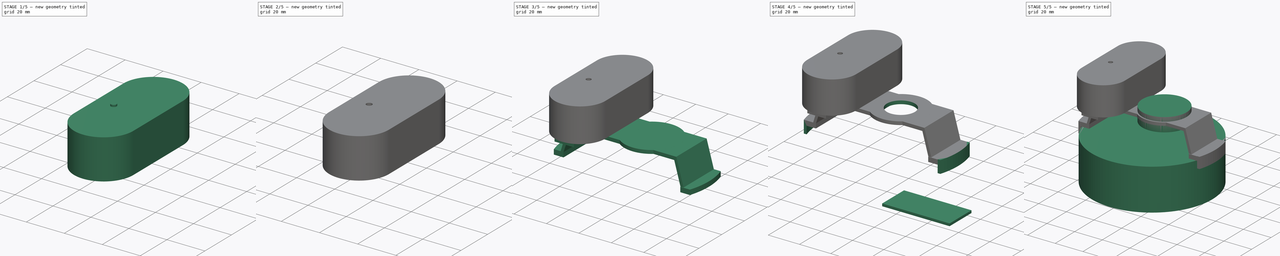
[diagram: build sequence overview — one tinted view per stage of 5, left to right]
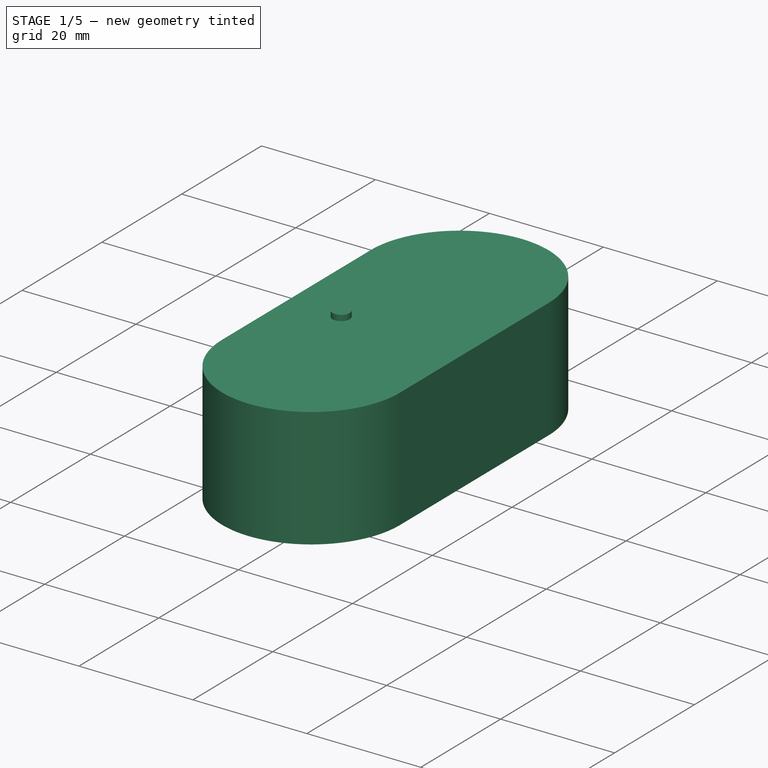
[diagram: stage 1 of 5 — iso view after this stage's code; geometry added in this stage tinted green]
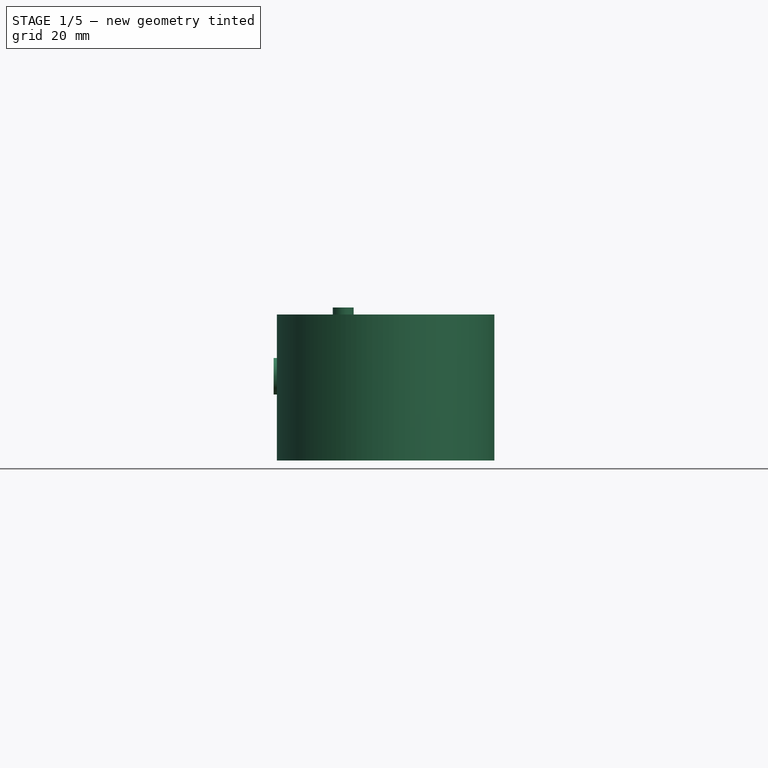
[diagram: stage 1 of 5 — front view after this stage's code; geometry added in this stage tinted green]
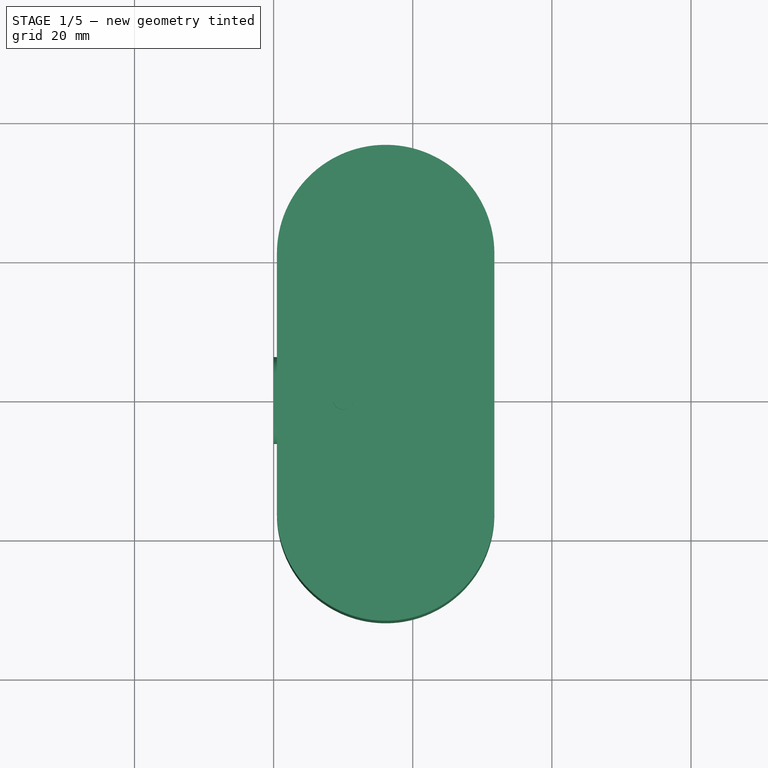
[diagram: stage 1 of 5 — top view after this stage's code; geometry added in this stage tinted green]
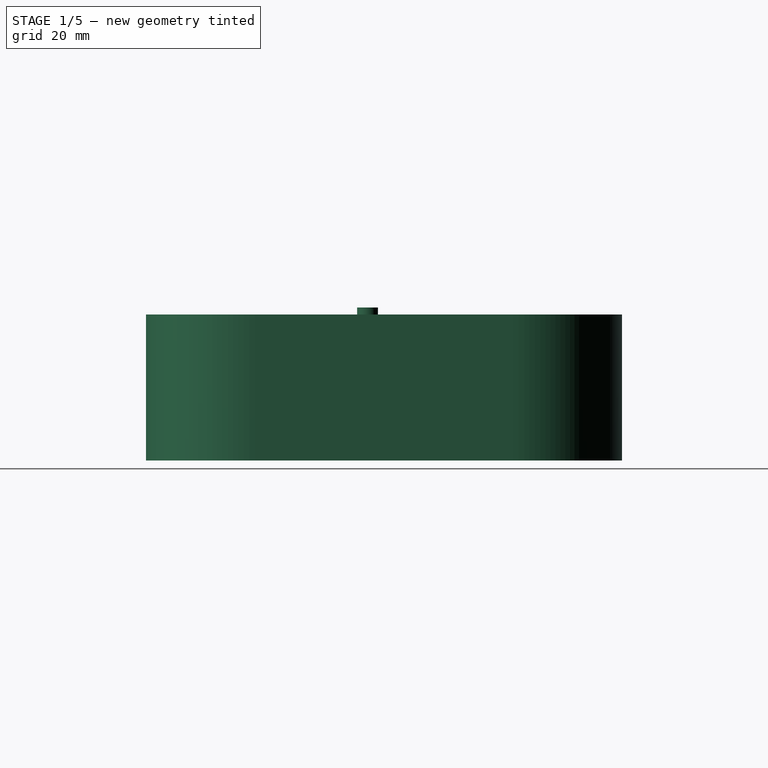
[diagram: stage 1 of 5 — right view after this stage's code; geometry added in this stage tinted green]
FCSTD DOCUMENT  (FreeCAD 1.0R38641 +678 (Git))
Label: watergenie
License: All rights reserved
LicenseURL: https://en.wikipedia.org/wiki/All_rights_reserved
objects: Part::Cylinder×10, Sketcher::SketchObject×7, Part::Cut×7, Part::Extrusion×6, Part::FeaturePython×5, Part::MultiFuse×5, Part::Box×3, App::Part×1, Part::Feature×1, Part::Compound×1
note: 52 computed .brp shape members not serialized (recipe doc carries the construction recipe); baked Part::Feature solids carry a one-line shape summary decoded from their .brp

FEATURE [Sketcher::SketchObject] Sketch005
  ArcFitTolerance = 1e-06
  FullyConstrained = false
  MakeInternals = false
  MapMode = 5
  Placement = pos=(-2,-1,-5) rot=(1,0,0;1.5708rad)
  sketch-geometry (4):
    g0: ArcOfCircle CenterX=16.4089 CenterY=12.1193 CenterZ=0 NormalX=0 NormalY=0 NormalZ=1 AngleXU=0 Radius=2.62202 StartAngle=1.5708 EndAngle=4.71239
    g1: ArcOfCircle CenterX=23.6644 CenterY=12.1193 CenterZ=0 NormalX=0 NormalY=0 NormalZ=1 AngleXU=0 Radius=2.62202 StartAngle=4.71239 EndAngle=7.85398
    g2: LineSegment StartX=16.4089 StartY=14.7414 StartZ=0 EndX=23.6644 EndY=14.7414 EndZ=0
    g3: LineSegment StartX=16.4089 StartY=9.49732 StartZ=0 EndX=23.6644 EndY=9.49732 EndZ=0
  constraints (6):
    c: Tangent(g0,g2) = 1.5708
    c: Tangent(g0,g3) = -1.5708
    c: Tangent(g1,g2) = 1.5708
    c: Tangent(g1,g3) = -1.5708
    c: Equal(g0,g1)
    c: Horizontal(g3)
FEATURE [Part::Extrusion] Extrude005  label="usbExtrude001"
  Base = -> Sketch005
  Dir = (0,-1,2e-16)
  DirMode = 2
  FaceMakerClass = Part::FaceMakerBullseye
  FaceMakerMode = 3
  LengthFwd = 3
  LengthRev = 0
  Placement = pos=(-36,18,54) rot=(0,0,1;4.71239rad)
  Solid = true
  Symmetric = false
FEATURE [Part::Box] Box  label="inner001"
  AttacherType = Attacher::AttachEngine3D
  Height = 19
  Length = 28
  Placement = pos=(-38,-21,49) rot=(0,0,1;0rad)
  Width = 46
FEATURE [Sketcher::SketchObject] Sketch006  label="outer001"
  ArcFitTolerance = 1e-06
  AttachmentOffset = pos=(0,0,2) rot=(0,0,1;0rad)
  AttachmentSupport = -> [Box]
  FullyConstrained = false
  MakeInternals = false
  MapMode = 5
  Placement = pos=(-38,-21,70) rot=(0,0,1;0rad)
  sketch-geometry (4):
    g0: ArcOfCircle CenterX=14.1067 CenterY=41.9467 CenterZ=0 NormalX=0 NormalY=0 NormalZ=1 AngleXU=0 Radius=15.6325 StartAngle=2e-16 EndAngle=3.14159
    g1: ArcOfCircle CenterX=14.1067 CenterY=4.77583 CenterZ=0 NormalX=0 NormalY=0 NormalZ=1 AngleXU=0 Radius=15.6325 StartAngle=3.14159 EndAngle=6.28319
    g2: LineSegment StartX=29.7392 StartY=41.9467 StartZ=0 EndX=29.7392 EndY=4.77583 EndZ=0
    g3: LineSegment StartX=-1.52572 StartY=41.9467 StartZ=0 EndX=-1.52572 EndY=4.77584 EndZ=0
  constraints (6):
    c: Tangent(g0,g2) = 1.5708
    c: Tangent(g0,g3) = -1.5708
    c: Tangent(g1,g2) = 1.5708
    c: Tangent(g1,g3) = -1.5708
    c: Equal(g0,g1)
    c: Vertical(g2)
FEATURE [Part::Extrusion] Extrude009  label="outerExtrude001"
  Base = -> Sketch006
  Dir = (0,0,1)
  DirMode = 2
  FaceMakerClass = Part::FaceMakerBullseye
  FaceMakerMode = 3
  LengthFwd = -21
  LengthRev = 0
  Solid = true
  Symmetric = false
FEATURE [Part::Cylinder] Cylinder021  label="insert007"
  Angle = 360
  AttacherType = Attacher::AttachEngine3D
  FirstAngle = 0
  Height = 9
  Placement = pos=(-24,30,49) rot=(0,0,1;0rad)
  Radius = 2.1
  SecondAngle = 0
FEATURE [Part::Cylinder] Cylinder022  label="insert008"
  Angle = 360
  AttacherType = Attacher::AttachEngine3D
  FirstAngle = 0
  Height = 9
  Placement = pos=(-24,-25,49) rot=(0,0,1;0rad)
  Radius = 2.1
  SecondAngle = 0
FEATURE [Part::MultiFuse] Fusion001
  Refine = true
  Shapes = -> [Cylinder021,Cylinder022,Extrude005]
FEATURE [Part::Cylinder] Cylinder025  label="ledHold001"
  Angle = 360
  AttacherType = Attacher::AttachEngine3D
  FirstAngle = 0
  Height = 4
  Placement = pos=(-30,0,67) rot=(0,0,1;0rad)
  Radius = 1.5
  SecondAngle = 0
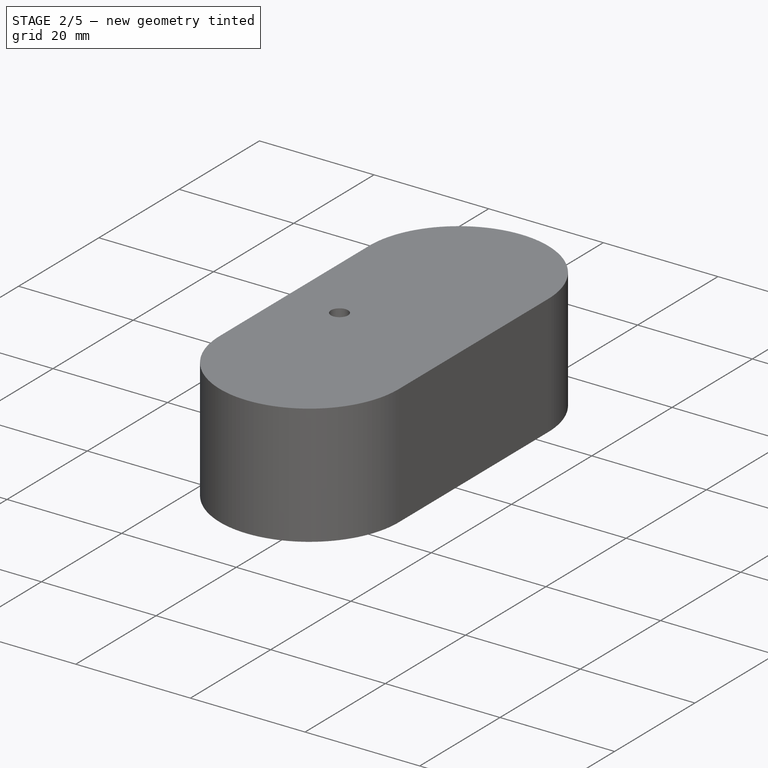
[diagram: stage 2 of 5 — iso view after this stage's code; geometry added in this stage tinted green]
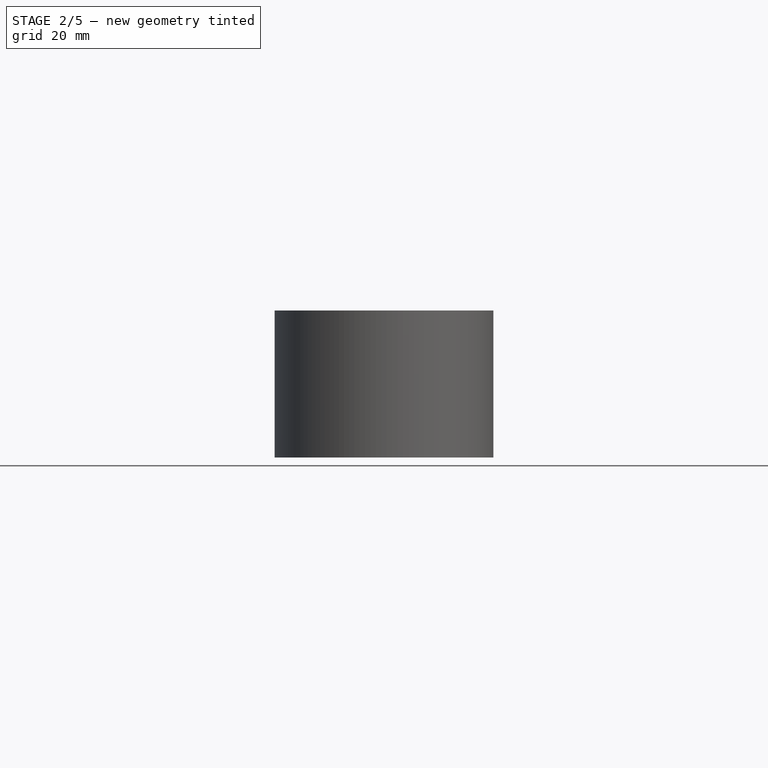
[diagram: stage 2 of 5 — front view after this stage's code; geometry added in this stage tinted green]
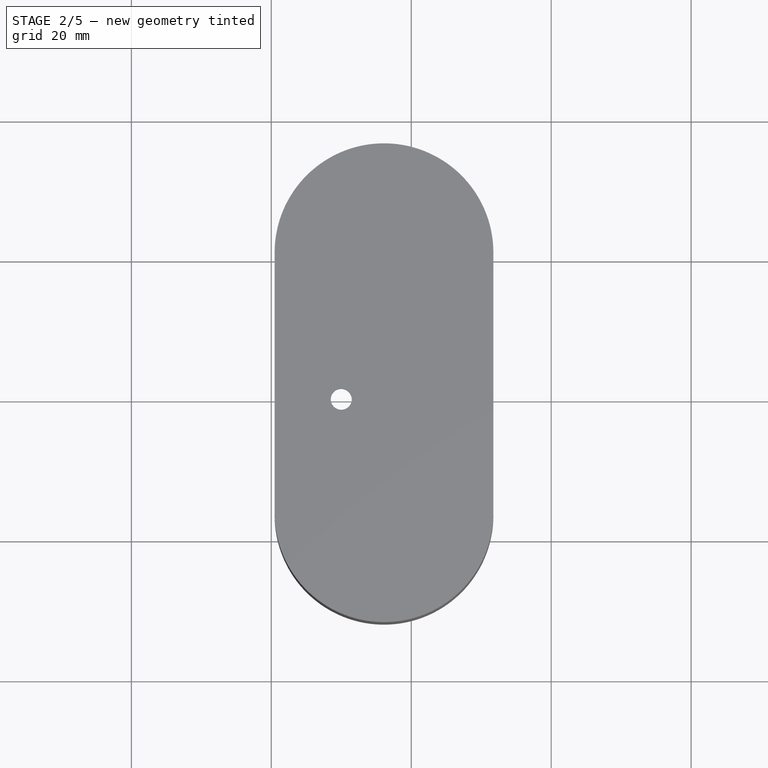
[diagram: stage 2 of 5 — top view after this stage's code; geometry added in this stage tinted green]
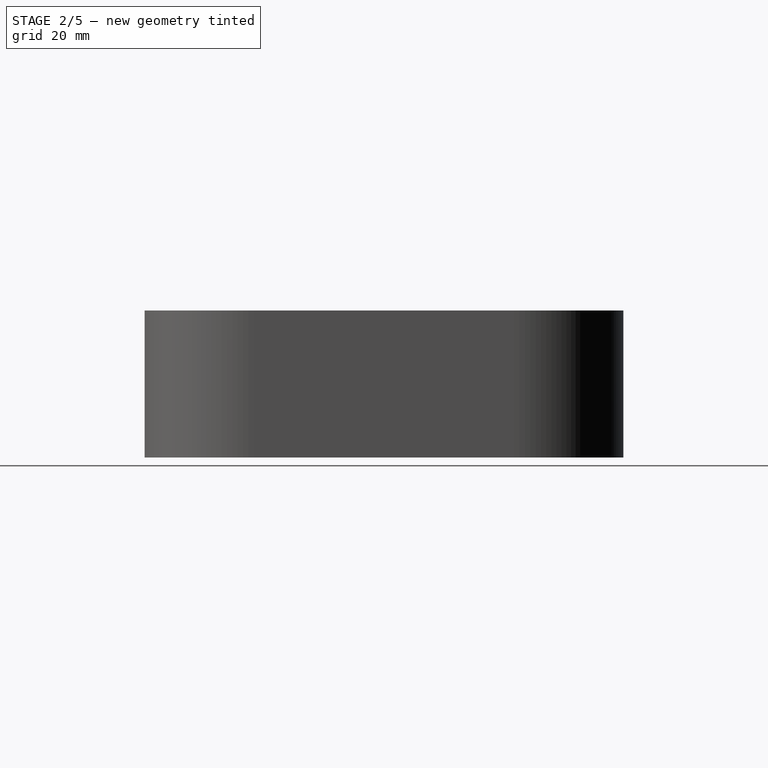
[diagram: stage 2 of 5 — right view after this stage's code; geometry added in this stage tinted green]
FEATURE [Part::Cylinder] Cylinder019  label="insert005"
  Angle = 360
  AttacherType = Attacher::AttachEngine3D
  FirstAngle = 0
  Height = 12
  Placement = pos=(5.5,-0.5,-2) rot=(0,0,1;0rad)
  Radius = 4
  SecondAngle = 0
FEATURE [Part::Cylinder] Cylinder020  label="insert006"
  Angle = 360
  AttacherType = Attacher::AttachEngine3D
  FirstAngle = 0
  Height = 9
  Placement = pos=(5.5,-0.5,1) rot=(0,0,1;0rad)
  Radius = 2.1
  SecondAngle = 0
FEATURE [Part::Cut] Cut015  label="cpuSupport001"
  Base = -> Cylinder019
  Placement = pos=(-34,-14.7,66) rot=(1,0,0;3.14159rad)
  Refine = true
  Tool = -> Cylinder020
FEATURE [Part::FeaturePython] Clone006  label="cpuSupport002"  # Draft clone (typed FeaturePython)
  AttacherType = Attacher::AttachEngine3D
  Fuse = false
  Objects = -> [Cut015]
  Placement = pos=(-34,15,66) rot=(1,0,0;3.14159rad)
  Scale = (1,1,1)
FEATURE [Part::Cut] Cut016
  Base = -> Extrude009
  Refine = true
  Tool = -> Box
FEATURE [Part::Cut] Cut017
  Base = -> Cut016
  Refine = true
  Tool = -> Fusion001
FEATURE [Part::MultiFuse] Fusion002  label="fullCase001"
  Refine = true
  Shapes = -> [Cut017,Clone006,Cut015]
FEATURE [Part::Cut] Cut019  label="fullCase002"
  Base = -> Fusion002
  Refine = true
  Tool = -> Cylinder025
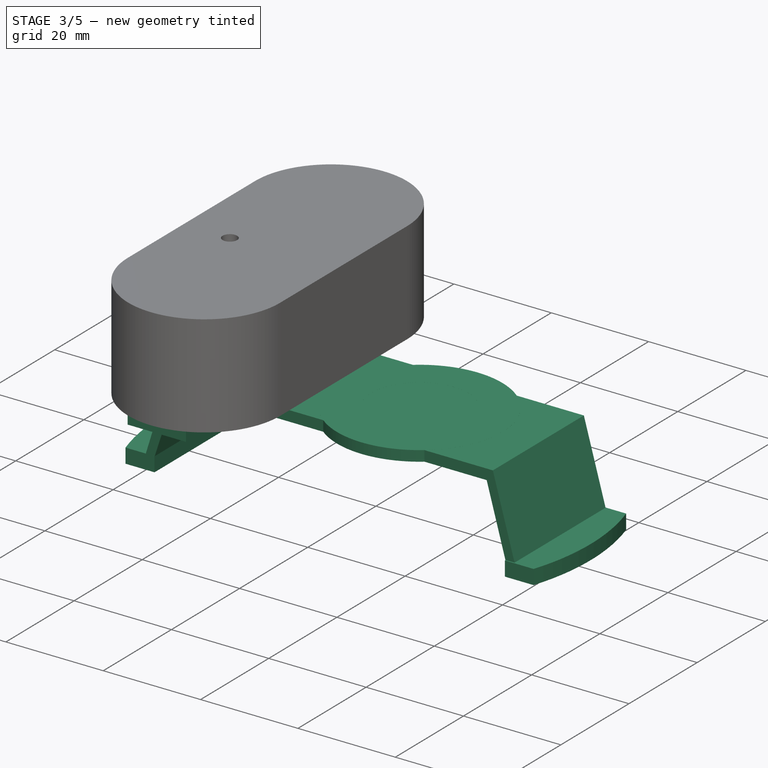
[diagram: stage 3 of 5 — iso view after this stage's code; geometry added in this stage tinted green]
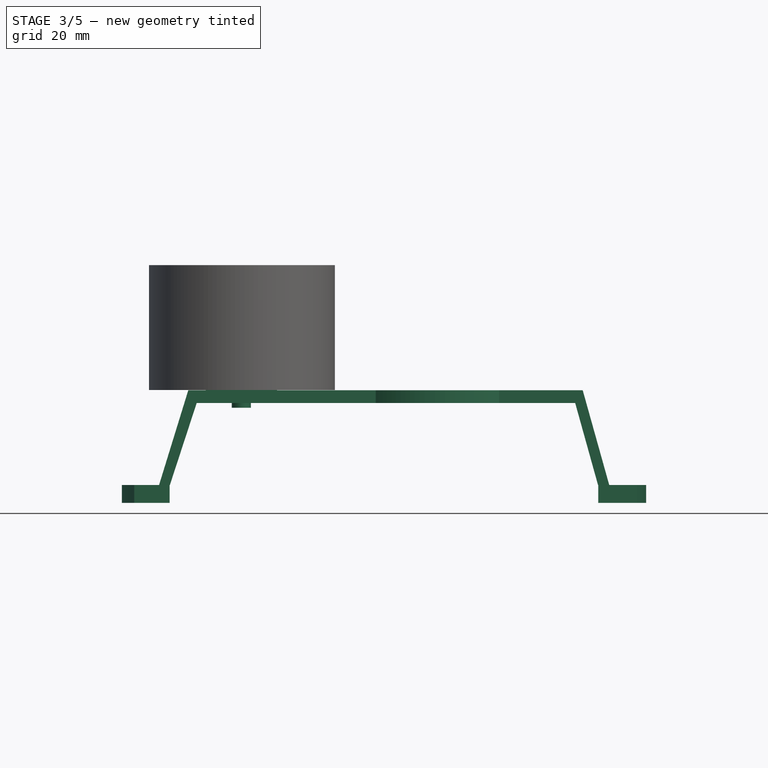
[diagram: stage 3 of 5 — front view after this stage's code; geometry added in this stage tinted green]
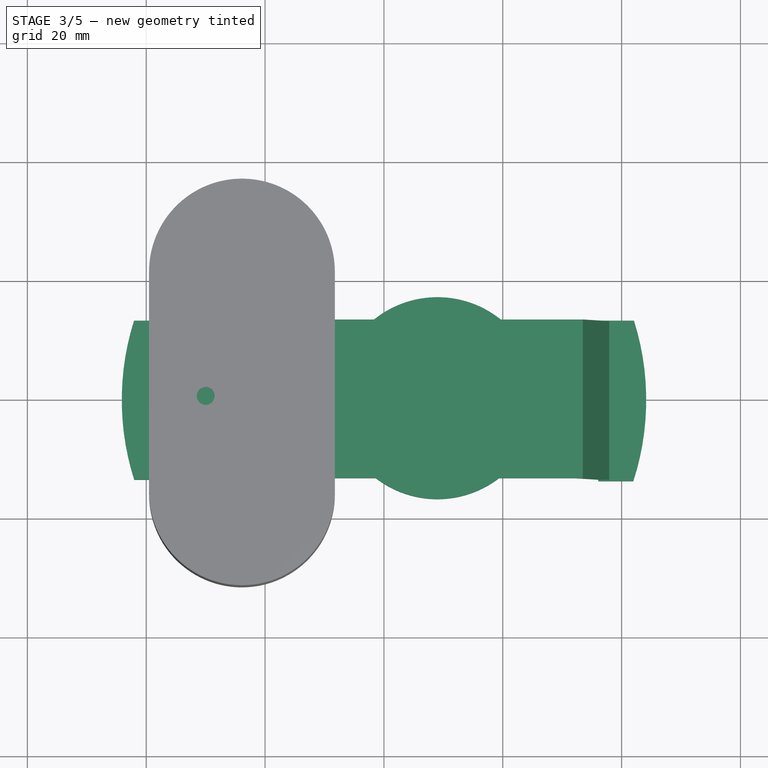
[diagram: stage 3 of 5 — top view after this stage's code; geometry added in this stage tinted green]
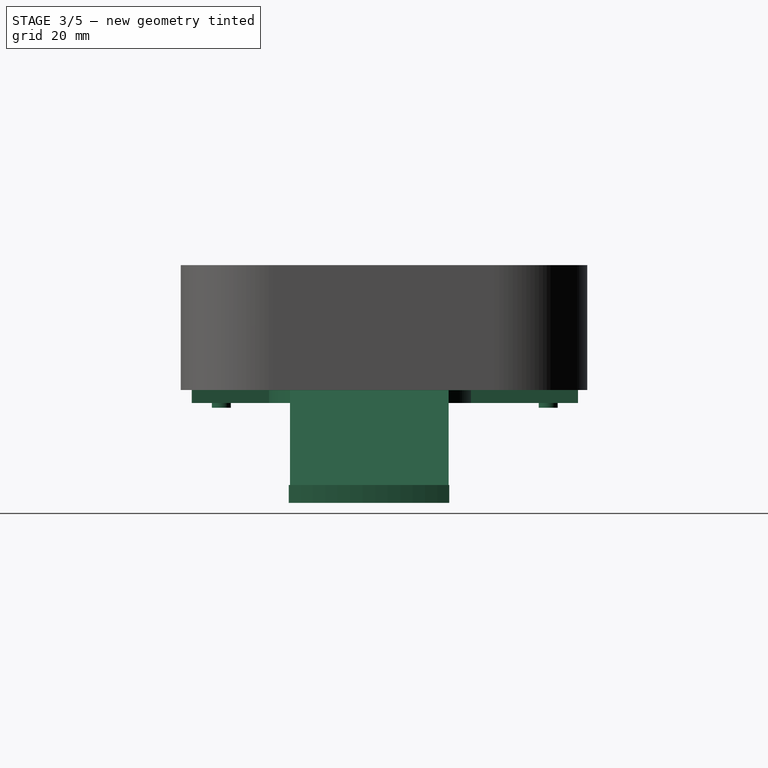
[diagram: stage 3 of 5 — right view after this stage's code; geometry added in this stage tinted green]
FEATURE [Sketcher::SketchObject] Sketch001  label="baseSketch001"
  ArcFitTolerance = 1e-06
  AttachmentSupport = -> [Cylinder]
  FullyConstrained = false
  MakeInternals = false
  MapMode = 5
  Placement = pos=(0,0,30) rot=(0,0,1;0rad)
  sketch-geometry (8):
    g0: ArcOfCircle CenterX=0 CenterY=0 CenterZ=0 NormalX=0 NormalY=0 NormalZ=1 AngleXU=0 Radius=44.1168 StartAngle=2.83454 EndAngle=3.45159
    g1: ArcOfCircle CenterX=0 CenterY=0 CenterZ=0 NormalX=0 NormalY=0 NormalZ=1 AngleXU=0 Radius=44.1401 StartAngle=5.96833 EndAngle=6.59007
    g2: LineSegment StartX=-42.0534 StartY=13.3343 StartZ=0 EndX=-36.0538 EndY=13.3343 EndZ=0
    g3: LineSegment StartX=-42.014 StartY=-13.458 StartZ=0 EndX=-36.0538 EndY=-13.458 EndZ=0
    g4: LineSegment StartX=-36.0538 StartY=-13.458 StartZ=0 EndX=-36.0538 EndY=13.3343 EndZ=0
    g5: LineSegment StartX=42.0779 StartY=13.3343 StartZ=0 EndX=36.0782 EndY=13.3343 EndZ=0
    g6: LineSegment StartX=36.0782 StartY=13.3343 StartZ=0 EndX=36.0782 EndY=-13.6694 EndZ=0
    g7: LineSegment StartX=36.0782 StartY=-13.6694 StartZ=0 EndX=41.9702 EndY=-13.6694 EndZ=0
  constraints (17):
    c: Coincident(g0,g-1)
    c: Coincident(g1,g0)
    c: Coincident(g2,g0)
    c: Horizontal(g2)
    c: Coincident(g3,g0)
    c: Coincident(g4,g3)
    c: Coincident(g4,g2)
    c: Vertical(g4)
    c: Coincident(g5,g1)
    c: Horizontal(g5)
    c: Coincident(g6,g5)
    c: Vertical(g6)
    c: Coincident(g7,g6)
    c: Coincident(g7,g1)
    c: Horizontal(g3)
    c: Horizontal(g7)
    c: Equal(g2,g5)
FEATURE [Part::Extrusion] Extrude  label="baseExtrude001"
  Base = -> Sketch001
  Dir = (0,0,1)
  DirMode = 2
  FaceMakerClass = Part::FaceMakerBullseye
  FaceMakerMode = 3
  LengthFwd = 3
  LengthRev = 0
  Solid = true
  Symmetric = false
FEATURE [Sketcher::SketchObject] Sketch003  label="bridgeSketch001"
  ArcFitTolerance = 1e-06
  FullyConstrained = false
  MakeInternals = false
  MapMode = 3
  Placement = pos=(0,-13.458,0) rot=(1,0,0;1.5708rad)
  sketch-geometry (8):
    g0: LineSegment StartX=-36.0215 StartY=33.0013 StartZ=0 EndX=-31.5096 EndY=46.8029 EndZ=0
    g1: LineSegment StartX=-31.5096 StartY=46.8029 StartZ=0 EndX=32.1857 EndY=46.8029 EndZ=0
    g2: LineSegment StartX=32.1857 StartY=46.8029 StartZ=0 EndX=36.0285 EndY=33.0109 EndZ=0
    g3: LineSegment StartX=36.0285 StartY=33.0109 StartZ=0 EndX=37.9139 EndY=33.0109 EndZ=0
    g4: LineSegment StartX=37.9139 StartY=33.0109 StartZ=0 EndX=33.4553 EndY=48.9464 EndZ=0
    g5: LineSegment StartX=33.4553 StartY=48.9464 StartZ=0 EndX=-32.9246 EndY=48.9464 EndZ=0
    g6: LineSegment StartX=-32.9246 StartY=48.9464 StartZ=0 EndX=-37.8418 EndY=33.0048 EndZ=0
    g7: LineSegment StartX=-37.8418 StartY=33.0048 StartZ=0 EndX=-36.0215 EndY=33.0013 EndZ=0
  constraints (11):
    c: Coincident(g0,g1)
    c: Horizontal(g1)
    c: Coincident(g1,g2)
    c: Coincident(g2,g3)
    c: Horizontal(g3)
    c: Coincident(g3,g4)
    c: Coincident(g4,g5)
    c: Horizontal(g5)
    c: Coincident(g5,g6)
    c: Coincident(g6,g7)
    c: Coincident(g7,g0)
FEATURE [Part::Extrusion] Extrude003
  Base = -> Sketch003
  Dir = (0,-1,2e-16)
  DirMode = 2
  FaceMakerClass = Part::FaceMakerBullseye
  FaceMakerMode = 3
  LengthFwd = -26.7
  LengthRev = 0
  Solid = true
  Symmetric = false
FEATURE [Part::FeaturePython] Tube  label="sensorTube001"  # WARN: FeaturePython — macro-defined, semantics opaque (R4)
  AttacherType = Attacher::AttachEngine3D
  Height = 2.15
  InnerRadius = 10
  OuterRadius = 17
  Placement = pos=(9,0,46.8) rot=(0,0,1;0rad)
FEATURE [Part::Box] Box003  label="caseAttach001"
  AttacherType = Attacher::AttachEngine3D
  Height = 2.2
  Length = 12
  Placement = pos=(-30,-30,46.8) rot=(0,0,1;0rad)
  Width = 65
FEATURE [Part::Cylinder] Cylinder023  label="hole001"
  Angle = 360
  AttacherType = Attacher::AttachEngine3D
  FirstAngle = 0
  Height = 4
  Placement = pos=(-24,30,46) rot=(0,0,1;0rad)
  Radius = 1.6
  SecondAngle = 0
FEATURE [Part::Cylinder] Cylinder024  label="hole002"
  Angle = 360
  AttacherType = Attacher::AttachEngine3D
  FirstAngle = 0
  Height = 4
  Placement = pos=(-24,-25,46) rot=(0,0,1;0rad)
  Radius = 1.6
  SecondAngle = 0
FEATURE [Part::MultiFuse] Fusion004
  Refine = true
  Shapes = -> [Cylinder023,Cylinder024]
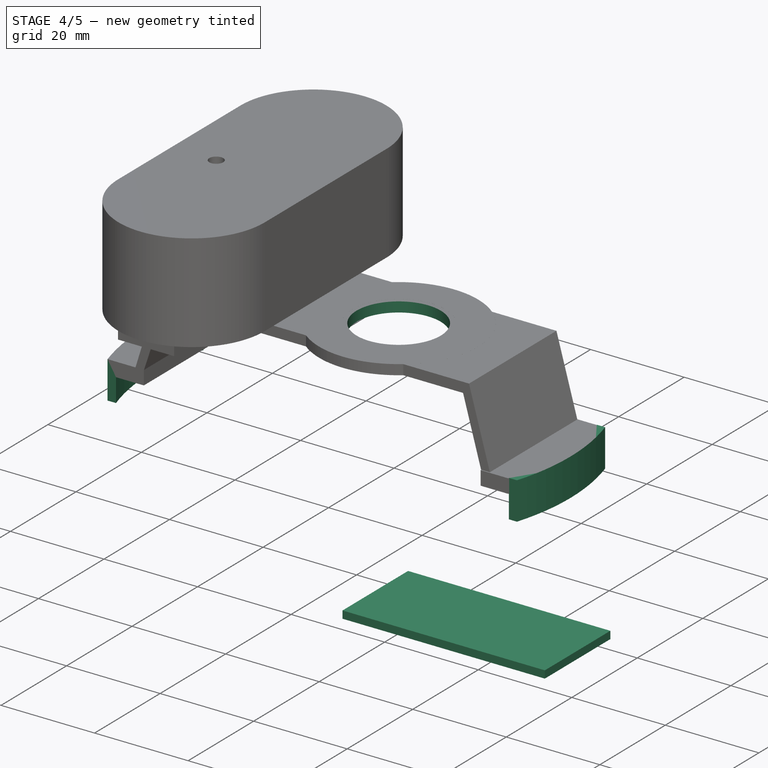
[diagram: stage 4 of 5 — iso view after this stage's code; geometry added in this stage tinted green]
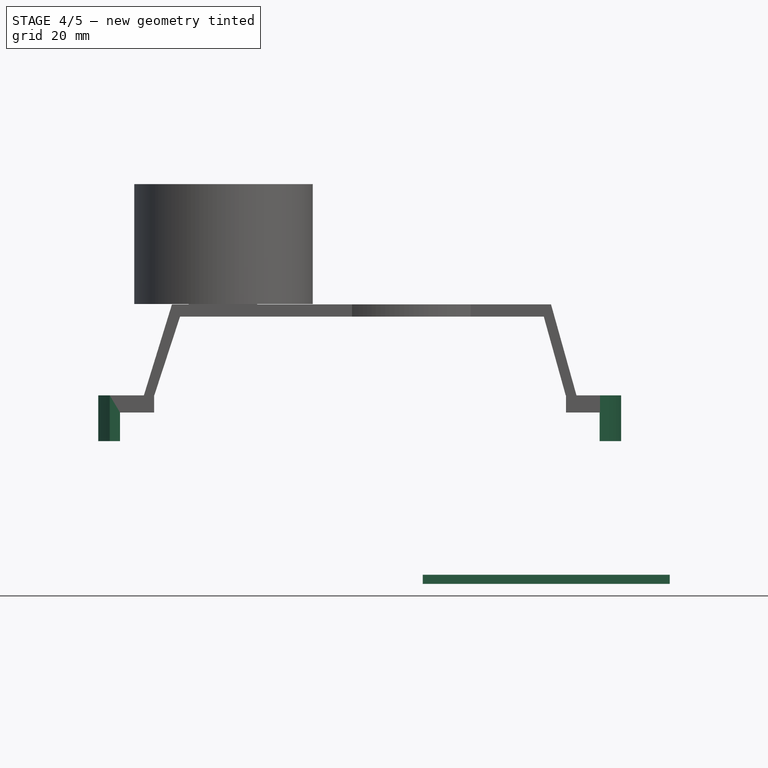
[diagram: stage 4 of 5 — front view after this stage's code; geometry added in this stage tinted green]
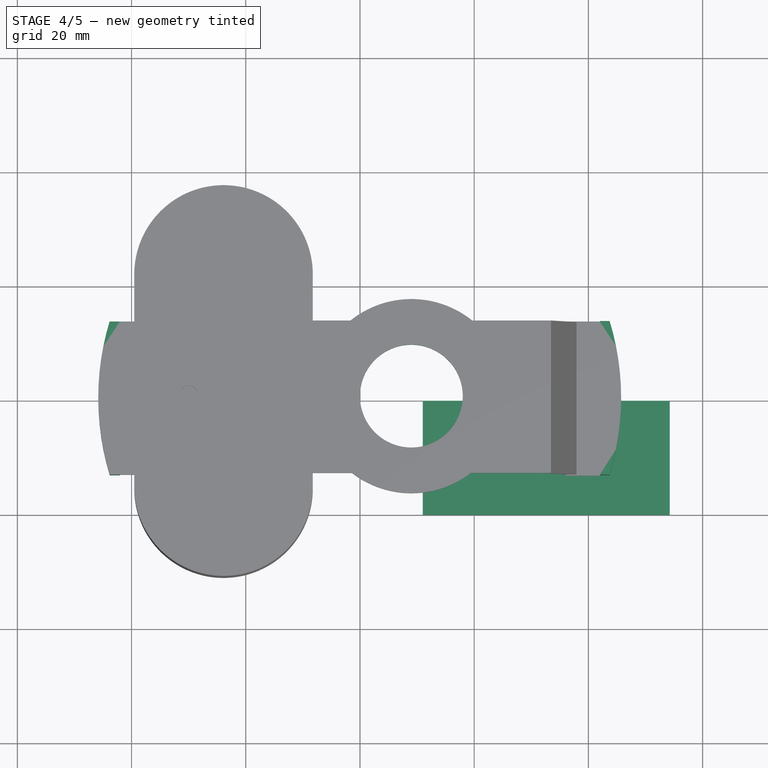
[diagram: stage 4 of 5 — top view after this stage's code; geometry added in this stage tinted green]
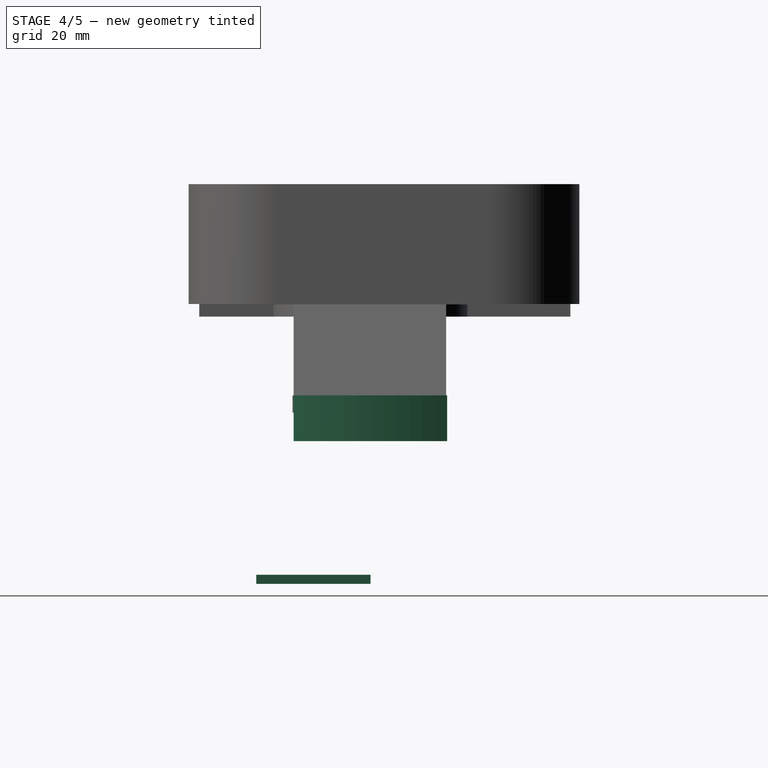
[diagram: stage 4 of 5 — right view after this stage's code; geometry added in this stage tinted green]
FEATURE [Sketcher::SketchObject] Sketch
  ArcFitTolerance = 1e-06
  AttachmentSupport = -> [Cylinder]
  ExternalGeometry = -> [Cylinder]
  FullyConstrained = false
  MakeInternals = false
  MapMode = 5
  Placement = pos=(0,0,30) rot=(0,0,1;0rad)
  sketch-geometry (7):
    g0: ArcOfCircle CenterX=0 CenterY=0 CenterZ=0 NormalX=0 NormalY=0 NormalZ=1 AngleXU=0 Radius=30.5 StartAngle=2.40046 EndAngle=7.02432
    g1: LineSegment StartX=-22.5 StartY=20.5913 StartZ=0 EndX=22.5 EndY=20.5913 EndZ=0
    g2: LineSegment [constr] StartX=30.5 StartY=0.0273494 StartZ=0 EndX=43.5 EndY=0.0273494 EndZ=0
    g3: Circle CenterX=18.6493 CenterY=0 CenterZ=0 NormalX=0 NormalY=0 NormalZ=1 AngleXU=0 Radius=8
    g4: LineSegment [constr] StartX=18.6493 StartY=0 StartZ=0 EndX=21.6295 EndY=7.42415 EndZ=0
    g5: Circle CenterX=9.08109 CenterY=-0.096109 CenterZ=0 NormalX=0 NormalY=0 NormalZ=1 AngleXU=0 Radius=9
    g6: LineSegment [constr] StartX=9.08109 StartY=-0.096109 StartZ=0 EndX=15.1622 EndY=-6.73092 EndZ=0
  constraints (16):
    c: Coincident(g0,g-1)
    c: Coincident(g1,g0)
    c: Coincident(g1,g0)
    c: Horizontal(g1)
    c: DistanceX(g1,g1) = 45
    c: PointOnObject(g2,g0)
    c: PointOnObject(g2,g-3)
    c: Horizontal(g2)
    c: DistanceX(g2,g2) = 13
    c: PointOnObject(g3,g-1)
    c: Coincident(g4,g3)
    c: PointOnObject(g4,g3)
    c: Distance(g4,g4) = 8
    c: Coincident(g6,g5)
    c: PointOnObject(g6,g5)
    c: Distance(g6,g6) = 9
FEATURE [Part::Cylinder] Cylinder001  label="sensor001"
  Angle = 360
  AttacherType = Attacher::AttachEngine3D
  FirstAngle = 0
  Height = 94
  Placement = pos=(9,0,30) rot=(0,0,1;0rad)
  Radius = 9
  SecondAngle = 0
FEATURE [Sketcher::SketchObject] Sketch002
  ArcFitTolerance = 1e-06
  AttachmentSupport = -> [Extrude]
  ExternalGeometry = -> [Extrude]
  FullyConstrained = false
  MakeInternals = false
  MapMode = 5
  Placement = pos=(0,0,33) rot=(0,0,1;0rad)
  sketch-geometry (8):
    g0: ArcOfCircle CenterX=0 CenterY=0 CenterZ=0 NormalX=0 NormalY=0 NormalZ=1 AngleXU=0 Radius=44.1168 StartAngle=2.83456 EndAngle=3.45159
    g1: ArcOfCircle CenterX=0.00530274 CenterY=0.00149563 CenterZ=0 NormalX=0 NormalY=0 NormalZ=1 AngleXU=0 Radius=44.0701 StartAngle=5.97282 EndAngle=6.59274
    g2: ArcOfCircle CenterX=0.00558139 CenterY=0.0018597 CenterZ=0 NormalX=0 NormalY=0 NormalZ=1 AngleXU=0 Radius=45.8418 StartAngle=2.84651 EndAngle=3.4396
    g3: ArcOfCircle CenterX=0 CenterY=0 CenterZ=0 NormalX=0 NormalY=0 NormalZ=1 AngleXU=0 Radius=45.7357 StartAngle=5.98451 EndAngle=6.58114
    g4: LineSegment StartX=-42.0536 StartY=13.3337 StartZ=0 EndX=-43.8548 EndY=13.3337 EndZ=0
    g5: LineSegment StartX=-42.014 StartY=-13.458 StartZ=0 EndX=-43.8156 EndY=-13.458 EndZ=0
    g6: LineSegment StartX=41.9808 StartY=13.4266 StartZ=0 EndX=43.7205 EndY=13.4266 EndZ=0
    g7: LineSegment StartX=41.9698 StartY=-13.4579 StartZ=0 EndX=43.7109 EndY=-13.4579 EndZ=0
  constraints (15):
    c: Coincident(g0,g-1)
    c: Coincident(g0,g-3)
    c: Coincident(g3,g0)
    c: Coincident(g4,g0)
    c: Coincident(g4,g2)
    c: Coincident(g5,g0)
    c: Coincident(g5,g2)
    c: Coincident(g6,g1)
    c: Coincident(g6,g3)
    c: Coincident(g7,g1)
    c: Coincident(g7,g3)
    c: Horizontal(g6)
    c: Horizontal(g7)
    c: Horizontal(g4)
    c: Horizontal(g5)
FEATURE [Part::Extrusion] Extrude001  label="sideExtrude001"
  Base = -> Sketch002
  Dir = (0,0,1)
  DirMode = 2
  FaceMakerClass = Part::FaceMakerBullseye
  FaceMakerMode = 3
  LengthFwd = -8
  LengthRev = 0
  Solid = true
  Symmetric = false
FEATURE [Part::FeaturePython] Clone  label="sensor003"  # Draft clone (typed FeaturePython)
  AttacherType = Attacher::AttachEngine3D
  Fuse = false
  Objects = -> [Cylinder001]
  Placement = pos=(9,0,30) rot=(0,0,1;0rad)
  Scale = (1,1,1)
FEATURE [Part::MultiFuse] Fusion
  Refine = true
  Shapes = -> [Extrude,Extrude003,Extrude001]
FEATURE [Part::Cut] Cut  label="bracket001"
  Base = -> Fusion
  Refine = true
  Tool = -> Clone
FEATURE [App::Part] ASSEMBLY  label="pin_header_1x6"
  Origin = -> Origin002
  Placement = pos=(23.5,-10,1) rot=(0,0,1;4.71239rad)
FEATURE [Part::Box] Box002  label="board001"
  AttacherType = Attacher::AttachEngine3D
  Height = 1.6
  Length = 20
  Placement = pos=(11,-2.4e-15,0) rot=(0,0,1;4.71239rad)
  Width = 43.25
FEATURE [Part::MultiFuse] Fusion003
  Refine = true
  Shapes = -> [Cut,Box003,Tube]
FEATURE [Part::Cut] Cut018  label="fullBracket001"
  Base = -> Fusion003
  Refine = true
  Tool = -> Fusion004
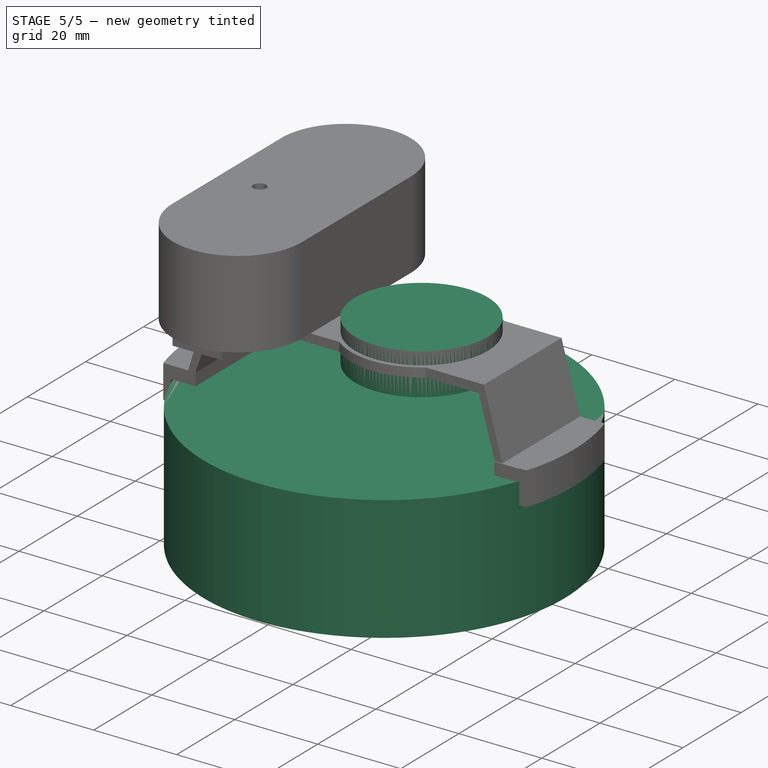
[diagram: stage 5 of 5 — iso view after this stage's code; geometry added in this stage tinted green]
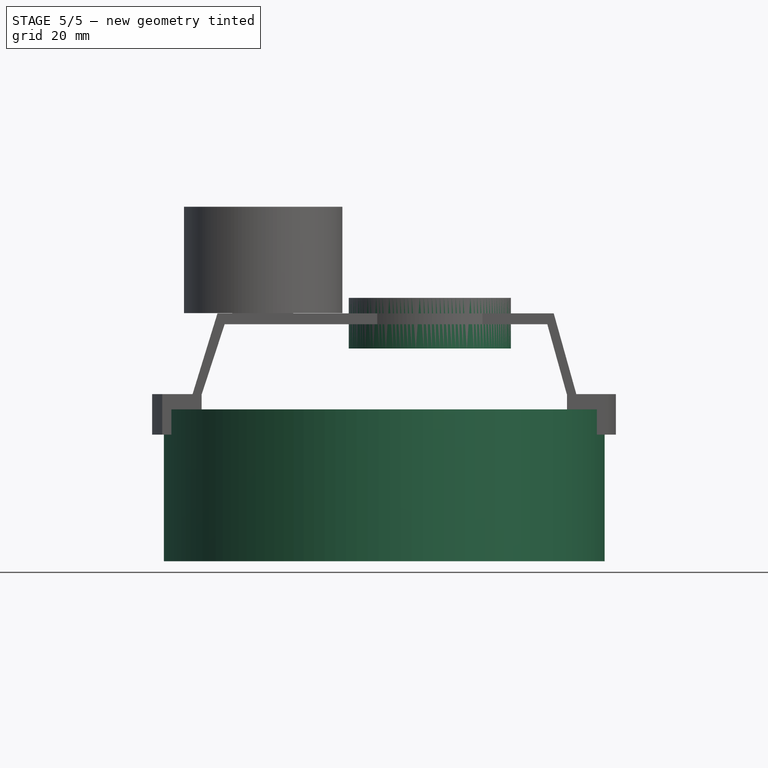
[diagram: stage 5 of 5 — front view after this stage's code; geometry added in this stage tinted green]
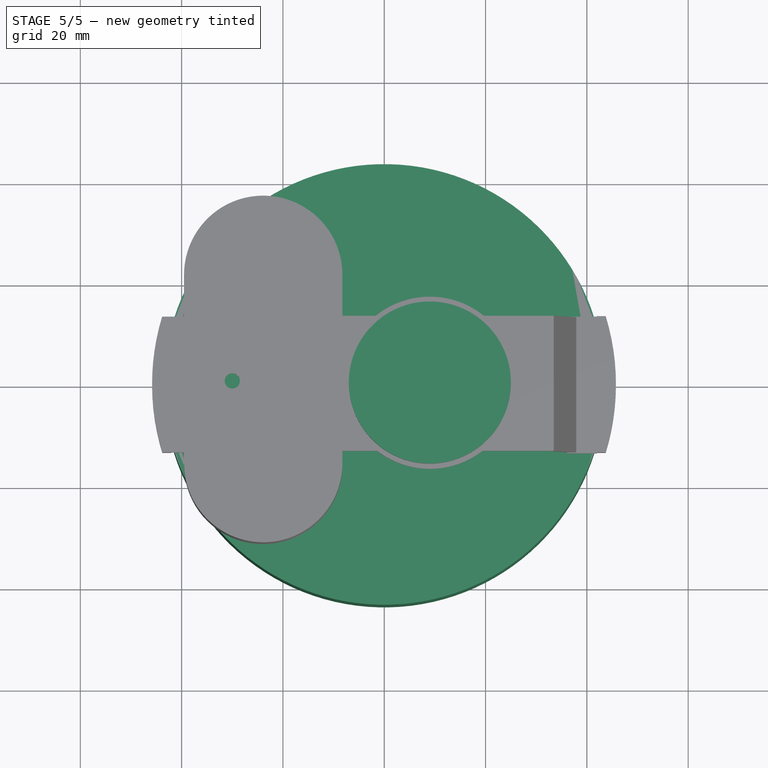
[diagram: stage 5 of 5 — top view after this stage's code; geometry added in this stage tinted green]
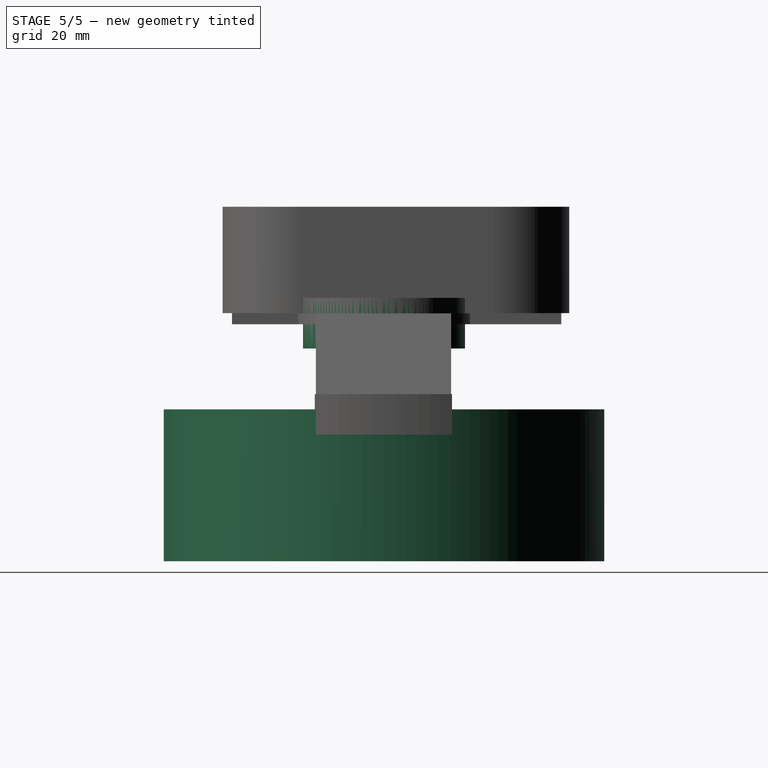
[diagram: stage 5 of 5 — right view after this stage's code; geometry added in this stage tinted green]
FEATURE [Part::Cylinder] Cylinder  label="meter001"
  Angle = 360
  AttacherType = Attacher::AttachEngine3D
  FirstAngle = 0
  Height = 30
  Radius = 43.5
  SecondAngle = 0
FEATURE [Part::Cylinder] Cylinder002  label="sensor002"
  Angle = 360
  AttacherType = Attacher::AttachEngine3D
  FirstAngle = 0
  Height = 10
  Placement = pos=(9,0,42) rot=(0,0,1;0rad)
  Radius = 16
  SecondAngle = 0
FEATURE [Part::FeaturePython] Clone004  label="pin_header_1x6_002"  # Draft clone (typed FeaturePython)
  AttacherType = Attacher::AttachEngine3D
  Fuse = false
  Objects = -> [ASSEMBLY]
  Placement = pos=(42.5,-10,1) rot=(0,0,1;4.71239rad)
  Scale = (1,1,1)
FEATURE [Part::FeaturePython] Clone005  label="pin_header_1x6_003"  # Draft clone (typed FeaturePython)
  AttacherType = Attacher::AttachEngine3D
  Fuse = false
  Objects = -> [Clone004]
  Placement = pos=(27.5,-10,1) rot=(0,0,1;4.71239rad)
  Scale = (1,1,1)
FEATURE [Part::Feature] Part__Feature  label="esp32 s3 + pines"
  Placement = pos=(35,-7,3) rot=(0,0,1;3.14159rad)
  shape: bbox 18 x 27.71 x 3.595 mm, 231 faces (baked)
FEATURE [Sketcher::SketchObject] Sketch004  label="boardHoles001"
  ArcFitTolerance = 1e-06
  AttachmentSupport = -> [Box002]
  ExternalGeometry = -> [Box002]
  FullyConstrained = false
  MakeInternals = false
  MapMode = 5
  Placement = pos=(11,-2.4e-15,1.6) rot=(0,0,-1;1.5708rad)
  sketch-geometry (4):
    g0: Circle CenterX=11.4 CenterY=38.1715 CenterZ=0 NormalX=0 NormalY=0 NormalZ=1 AngleXU=0 Radius=1.5
    g1: Circle CenterX=11.4 CenterY=8.47153 CenterZ=0 NormalX=0 NormalY=0 NormalZ=1 AngleXU=0 Radius=1.5
    g2: LineSegment [constr] StartX=11.4 StartY=38.1715 StartZ=0 EndX=11.4 EndY=8.47153 EndZ=0
    g3: LineSegment [constr] StartX=11.4 StartY=38.1715 StartZ=0 EndX=20 EndY=38.1715 EndZ=0
  constraints (10):
    c: Diameter(g0) = 3
    c: Diameter(g1) = 3
    c: Coincident(g2,g0)
    c: Coincident(g2,g1)
    c: Vertical(g2)
    c: DistanceY(g2,g2) = 29.7
    c: Coincident(g3,g0)
    c: PointOnObject(g3,g-3)
    c: Horizontal(g3)
    c: DistanceX(g3,g3) = 8.6
FEATURE [Part::Extrusion] Extrude004  label="HolesExtrude"
  Base = -> Sketch004
  Dir = (0,0,1)
  DirMode = 2
  FaceMakerClass = Part::FaceMakerBullseye
  FaceMakerMode = 3
  LengthFwd = -2
  LengthRev = 0
  Solid = true
  Symmetric = false
FEATURE [Part::Cut] Cut001  label="board002"
  Base = -> Box002
  Refine = true
  Tool = -> Extrude004
FEATURE [Part::Compound] Compound  label="mainCpu001"
  Links = -> [Cut001,Part__Feature,Clone005,Clone004]
  Placement = pos=(-17,35,54.7) rot=(0,0,-1;1.5708rad)
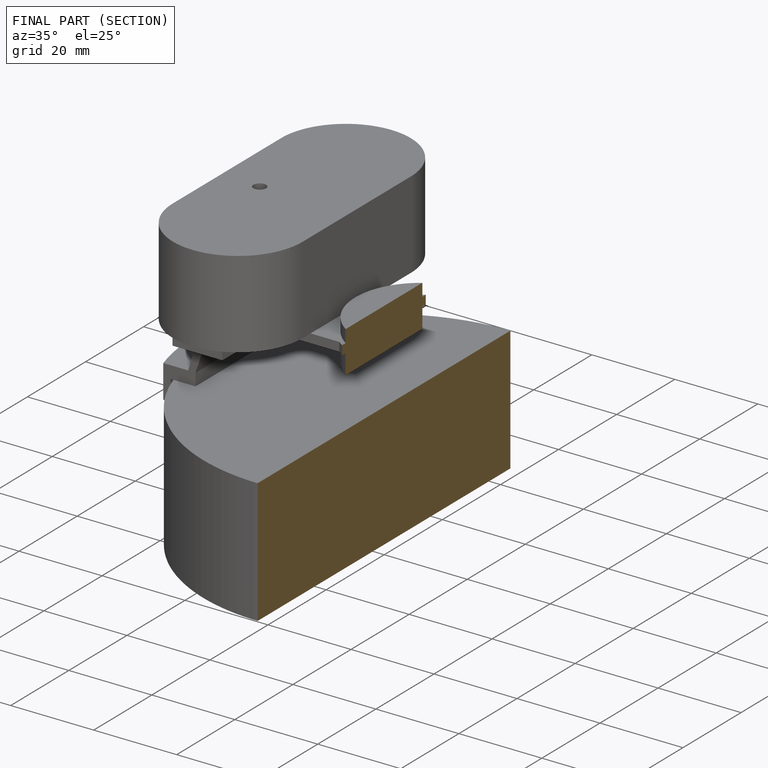
[diagram: finished part — half-section view (interior)]
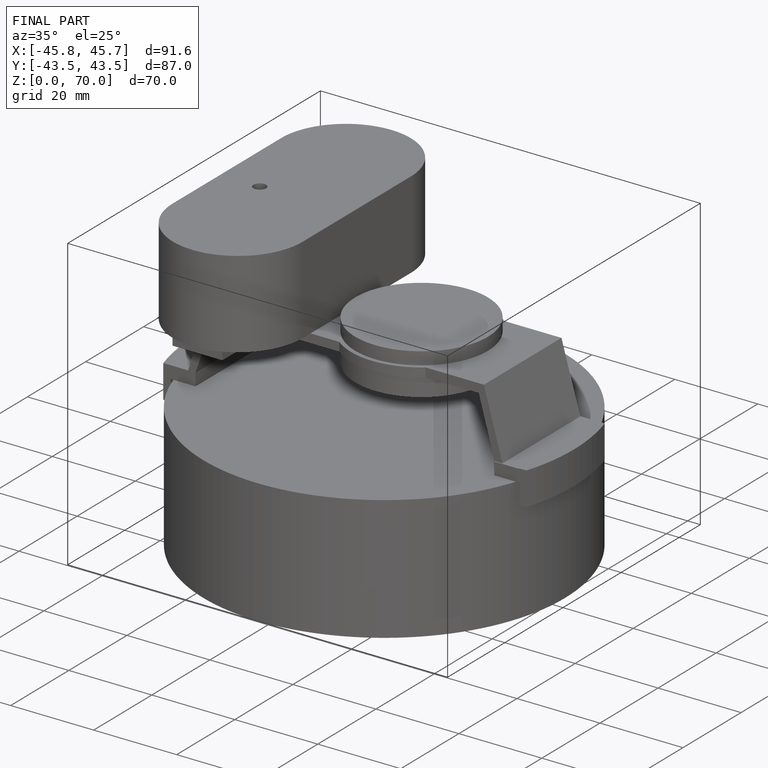
[diagram: finished part — iso view with bounding-box wireframe]
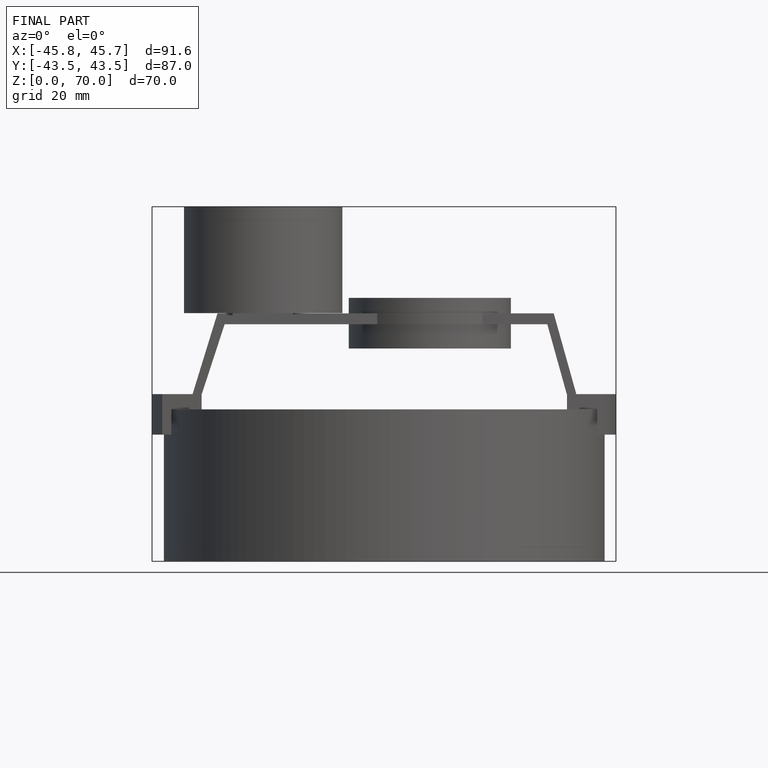
[diagram: finished part — front view with bounding-box wireframe]
